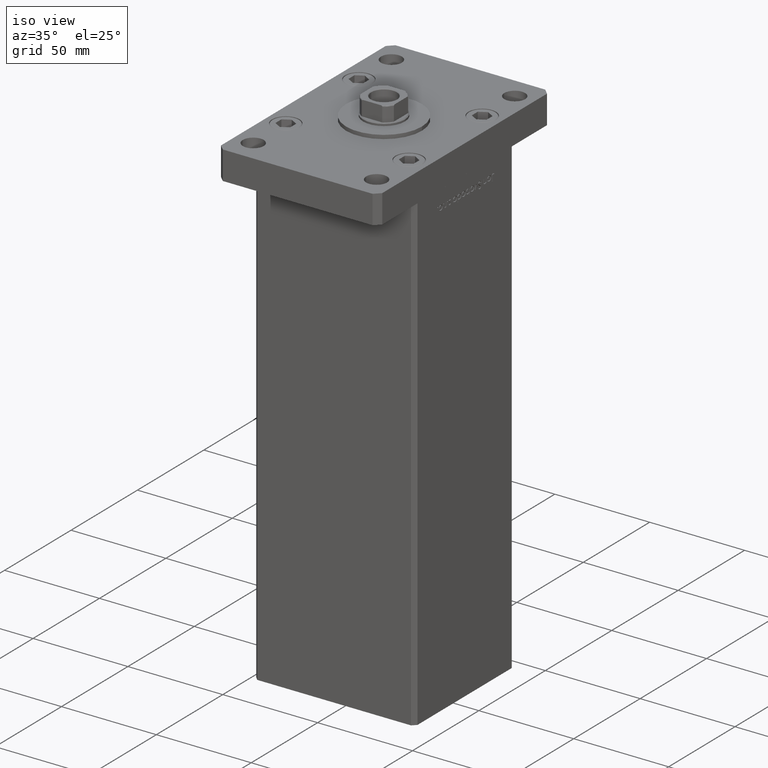
[diagram: clean part render]
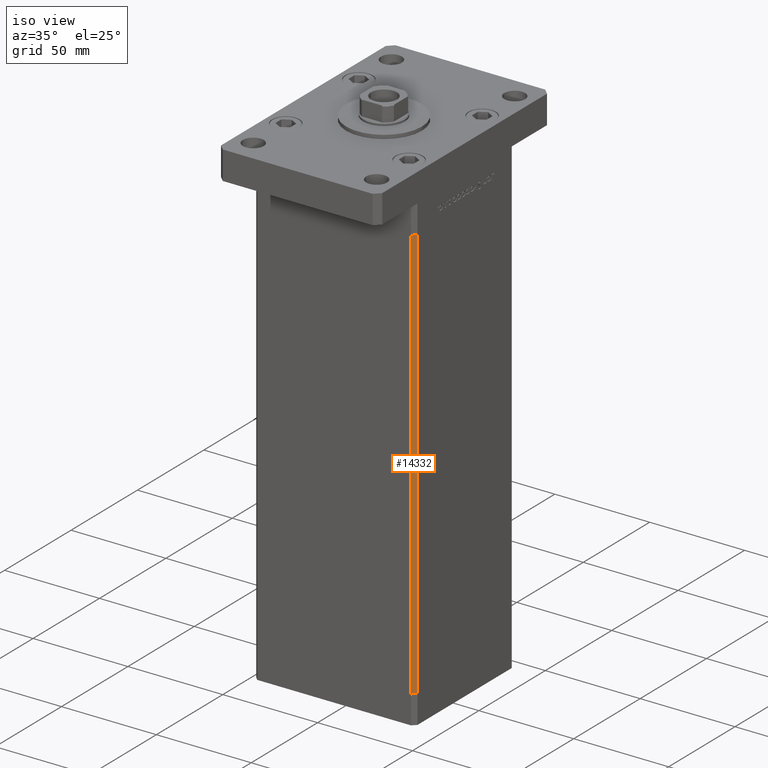
[diagram: same view with one face highlighted and labeled with its STEP entity id]
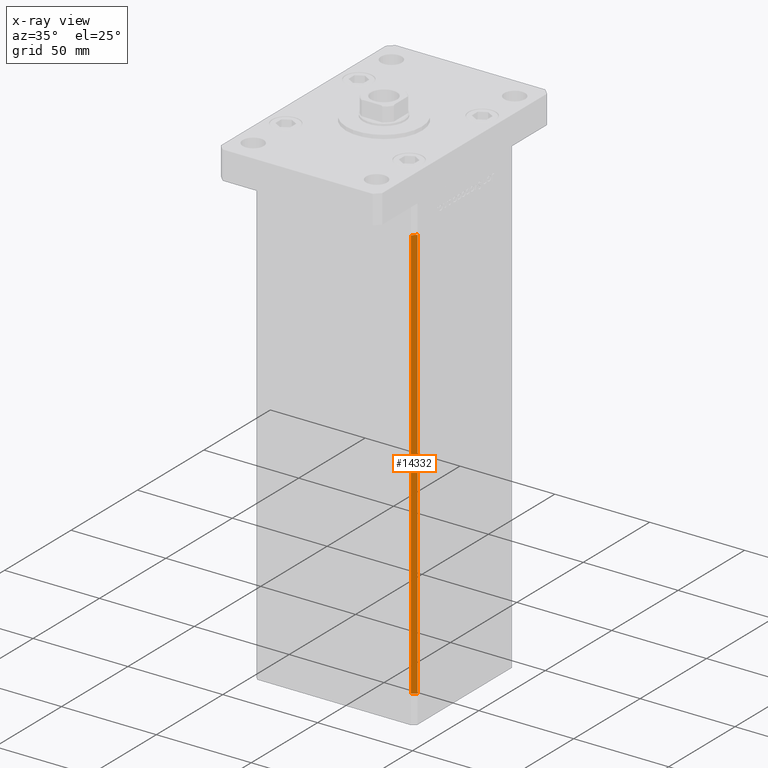
[diagram: x-ray of the same camera — body ghosted, the highlighted face saturated]
A machine part, iso view. The second image highlights one B-rep face of the part: STEP entity #14332.
The next image is the same camera in x-ray: the body ghosted, the highlighted face saturated — about 0% of this face is hidden behind the body in this view.
In plain terms, the highlighted planar face has unit normal (0.7071, -0.7071, 0).
Its self-contained STEP definition (entity closure, byte-faithful):
#1814 = ORIENTED_EDGE ( 'NONE', *, *, #26092, .T. ) ;
#2666 = DIRECTION ( 'NONE',  ( -0.000000000000000000, -0.000000000000000000, -1.000000000000000000 ) ) ;
#2839 = DIRECTION ( 'NONE',  ( 0.7071067811865475727, -0.7071067811865475727, 0.000000000000000000 ) ) ;
#4962 = CARTESIAN_POINT ( 'NONE',  ( 42.49999999999998579, -35.50000000000000711, 0.000000000000000000 ) ) ;
#5760 = CARTESIAN_POINT ( 'NONE',  ( 42.49999999999998579, -35.50000000000000711, 218.5000000000000000 ) ) ;
#6906 = FACE_OUTER_BOUND ( 'NONE', #27744, .T. ) ;
#7778 = AXIS2_PLACEMENT_3D ( 'NONE', #39978, #2839, #40519 ) ;
#12171 = LINE ( 'NONE', #46071, #21378 ) ;
#13459 = VECTOR ( 'NONE', #25827, 1000.000000000000114 ) ;
#13680 = VERTEX_POINT ( 'NONE', #38586 ) ;
#14332 = ADVANCED_FACE ( 'NONE', ( #6906 ), #23439, .T. ) ;
#14429 = DIRECTION ( 'NONE',  ( -0.7071067811865474617, -0.7071067811865474617, 0.000000000000000000 ) ) ;
#20517 = VECTOR ( 'NONE', #2666, 1000.000000000000000 ) ;
#21378 = VECTOR ( 'NONE', #37127, 1000.000000000000000 ) ;
#22040 = LINE ( 'NONE', #5760, #29664 ) ;
#23439 = PLANE ( 'NONE',  #7778 ) ;
#25827 = DIRECTION ( 'NONE',  ( -0.7071067811865474617, -0.7071067811865474617, 0.000000000000000000 ) ) ;
#26092 = EDGE_CURVE ( 'NONE', #48808, #13680, #22040, .T. ) ;
#27744 = EDGE_LOOP ( 'NONE', ( #41138, #42361, #1814, #30530 ) ) ;
#28809 = CARTESIAN_POINT ( 'NONE',  ( 42.49999999999998579, -35.50000000000000711, 218.5000000000000000 ) ) ;
#29664 = VECTOR ( 'NONE', #14429, 1000.000000000000114 ) ;
#30530 = ORIENTED_EDGE ( 'NONE', *, *, #49393, .T. ) ;
#30598 = CARTESIAN_POINT ( 'NONE',  ( 40.49999999999998579, -37.50000000000000711, 218.5000000000000000 ) ) ;
#30866 = LINE ( 'NONE', #30598, #20517 ) ;
#30945 = VERTEX_POINT ( 'NONE', #49695 ) ;
#34793 = EDGE_CURVE ( 'NONE', #52335, #30945, #42911, .T. ) ;
#37127 = DIRECTION ( 'NONE',  ( -0.000000000000000000, -0.000000000000000000, -1.000000000000000000 ) ) ;
#37200 = CARTESIAN_POINT ( 'NONE',  ( 42.49999999999998579, -35.50000000000000711, 0.000000000000000000 ) ) ;
#38586 = CARTESIAN_POINT ( 'NONE',  ( 40.49999999999998579, -37.50000000000000711, 218.5000000000000000 ) ) ;
#39978 = CARTESIAN_POINT ( 'NONE',  ( 42.49999999999998579, -35.50000000000000711, 218.5000000000000000 ) ) ;
#40519 = DIRECTION ( 'NONE',  ( 0.7071067811865474617, 0.7071067811865474617, 0.000000000000000000 ) ) ;
#41138 = ORIENTED_EDGE ( 'NONE', *, *, #34793, .F. ) ;
#42361 = ORIENTED_EDGE ( 'NONE', *, *, #47515, .F. ) ;
#42911 = LINE ( 'NONE', #4962, #13459 ) ;
#46071 = CARTESIAN_POINT ( 'NONE',  ( 42.49999999999998579, -35.50000000000000711, 218.5000000000000000 ) ) ;
#47515 = EDGE_CURVE ( 'NONE', #48808, #52335, #12171, .T. ) ;
#48808 = VERTEX_POINT ( 'NONE', #28809 ) ;
#49393 = EDGE_CURVE ( 'NONE', #13680, #30945, #30866, .T. ) ;
#49695 = CARTESIAN_POINT ( 'NONE',  ( 40.49999999999998579, -37.50000000000000711, 0.000000000000000000 ) ) ;
#52335 = VERTEX_POINT ( 'NONE', #37200 ) ;